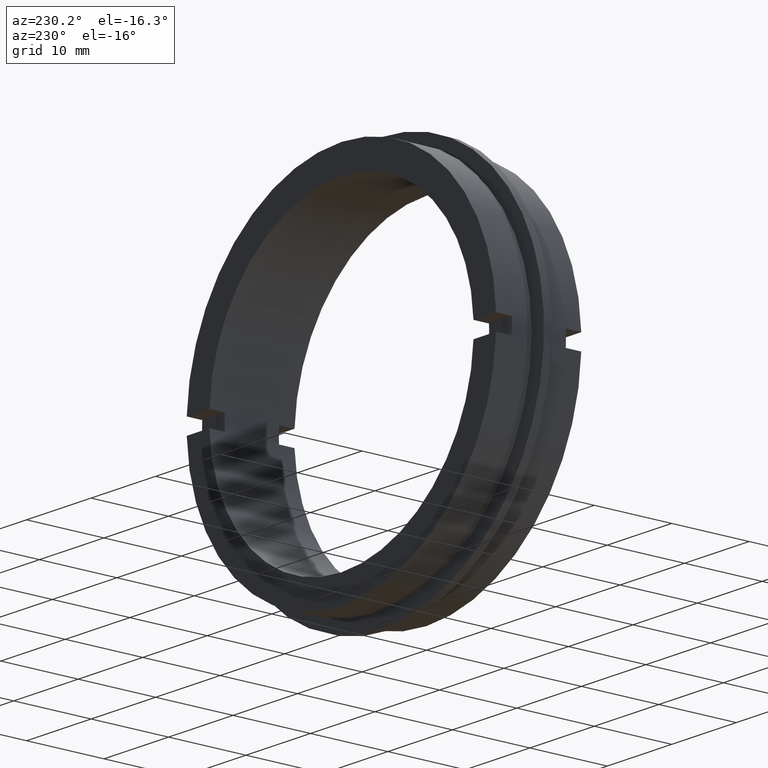
[diagram: clean part render]
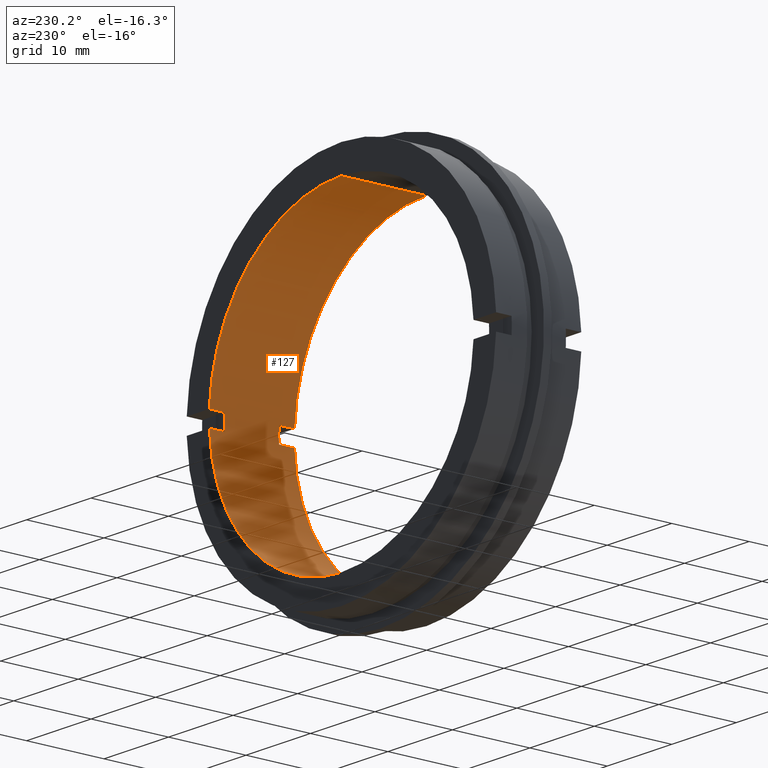
[diagram: same view with one face highlighted and labeled with its STEP entity id]
A machine part, auxiliary view. The second image highlights one B-rep face of the part: STEP entity #127.
In plain terms, the highlighted cylindrical surface (partial cylindrical patch) has radius 20.5 mm, axis along (-0, 1, -0).
Its self-contained STEP definition (entity closure, byte-faithful):
#5 = VERTEX_POINT ( 'NONE', #63 ) ;
#10 = CARTESIAN_POINT ( 'NONE',  ( 2.510525938252074100E-015, 22.67749945107591400, -20.49999999999999600 ) ) ;
#15 = LINE ( 'NONE', #1104, #938 ) ;
#16 = ORIENTED_EDGE ( 'NONE', *, *, #28, .F. ) ;
#28 = EDGE_CURVE ( 'NONE', #209, #980, #15, .T. ) ;
#58 = LINE ( 'NONE', #10, #498 ) ;
#62 = EDGE_LOOP ( 'NONE', ( #1058, #179, #573, #242, #64, #304, #601, #1044, #252, #966, #16, #1010 ) ) ;
#63 = CARTESIAN_POINT ( 'NONE',  ( 20.47559522944326500, 0.0000000000000000000, 1.000000000000000000 ) ) ;
#64 = ORIENTED_EDGE ( 'NONE', *, *, #411, .F. ) ;
#65 = DIRECTION ( 'NONE',  ( 0.0000000000000000000, 1.000000000000000000, 0.0000000000000000000 ) ) ;
#72 = DIRECTION ( 'NONE',  ( 0.0000000000000000000, 0.0000000000000000000, 1.000000000000000000 ) ) ;
#81 = CIRCLE ( 'NONE', #410, 20.49999999999999600 ) ;
#95 = LINE ( 'NONE', #911, #831 ) ;
#127 = ADVANCED_FACE ( 'NONE', ( #407 ), #692, .F. ) ;
#139 = CARTESIAN_POINT ( 'NONE',  ( 20.47559522944326500, 22.67749945107591400, -0.9999999999999943400 ) ) ;
#147 = VERTEX_POINT ( 'NONE', #853 ) ;
#159 = EDGE_CURVE ( 'NONE', #620, #341, #747, .T. ) ;
#174 = EDGE_CURVE ( 'NONE', #699, #301, #961, .T. ) ;
#179 = ORIENTED_EDGE ( 'NONE', *, *, #391, .F. ) ;
#190 = AXIS2_PLACEMENT_3D ( 'NONE', #243, #65, #686 ) ;
#205 = CARTESIAN_POINT ( 'NONE',  ( 20.47559522944326500, 22.67749945107591400, 1.000000000000003100 ) ) ;
#206 = EDGE_CURVE ( 'NONE', #209, #386, #507, .T. ) ;
#209 = VERTEX_POINT ( 'NONE', #1043 ) ;
#235 = DIRECTION ( 'NONE',  ( 0.0000000000000000000, 0.0000000000000000000, 1.000000000000000000 ) ) ;
#240 = EDGE_CURVE ( 'NONE', #1023, #5, #931, .T. ) ;
#242 = ORIENTED_EDGE ( 'NONE', *, *, #174, .F. ) ;
#243 = CARTESIAN_POINT ( 'NONE',  ( 0.0000000000000000000, 1.999999999999998200, 0.0000000000000000000 ) ) ;
#251 = AXIS2_PLACEMENT_3D ( 'NONE', #848, #665, #1089 ) ;
#252 = ORIENTED_EDGE ( 'NONE', *, *, #645, .F. ) ;
#278 = CARTESIAN_POINT ( 'NONE',  ( 0.0000000000000000000, 0.0000000000000000000, 0.0000000000000000000 ) ) ;
#291 = DIRECTION ( 'NONE',  ( -0.0000000000000000000, 1.000000000000000000, -0.0000000000000000000 ) ) ;
#301 = VERTEX_POINT ( 'NONE', #704 ) ;
#304 = ORIENTED_EDGE ( 'NONE', *, *, #240, .F. ) ;
#317 = AXIS2_PLACEMENT_3D ( 'NONE', #677, #772, #235 ) ;
#326 = VECTOR ( 'NONE', #629, 1000.000000000000000 ) ;
#329 = VECTOR ( 'NONE', #847, 1000.000000000000000 ) ;
#337 = DIRECTION ( 'NONE',  ( 0.0000000000000000000, 0.0000000000000000000, -1.000000000000000000 ) ) ;
#341 = VERTEX_POINT ( 'NONE', #618 ) ;
#356 = CARTESIAN_POINT ( 'NONE',  ( 20.47559522944326800, 9.000000000000000000, -0.9999999999999974500 ) ) ;
#367 = DIRECTION ( 'NONE',  ( 0.0000000000000000000, 0.0000000000000000000, 1.000000000000000000 ) ) ;
#386 = VERTEX_POINT ( 'NONE', #447 ) ;
#391 = EDGE_CURVE ( 'NONE', #595, #808, #81, .T. ) ;
#398 = DIRECTION ( 'NONE',  ( 0.0000000000000000000, -1.000000000000000000, 0.0000000000000000000 ) ) ;
#401 = CARTESIAN_POINT ( 'NONE',  ( 2.510525938252074100E-015, 0.0000000000000000000, -20.49999999999999600 ) ) ;
#407 = FACE_OUTER_BOUND ( 'NONE', #62, .T. ) ;
#410 = AXIS2_PLACEMENT_3D ( 'NONE', #278, #899, #367 ) ;
#411 = EDGE_CURVE ( 'NONE', #5, #699, #1031, .T. ) ;
#419 = DIRECTION ( 'NONE',  ( 0.0000000000000000000, 0.0000000000000000000, 1.000000000000000000 ) ) ;
#422 = EDGE_CURVE ( 'NONE', #808, #386, #58, .T. ) ;
#447 = CARTESIAN_POINT ( 'NONE',  ( 2.510525938252074500E-015, 11.00000000000000000, -20.50000000000000000 ) ) ;
#498 = VECTOR ( 'NONE', #988, 1000.000000000000000 ) ;
#506 = VECTOR ( 'NONE', #825, 1000.000000000000000 ) ;
#507 = CIRCLE ( 'NONE', #610, 20.50000000000000000 ) ;
#537 = LINE ( 'NONE', #205, #506 ) ;
#573 = ORIENTED_EDGE ( 'NONE', *, *, #1083, .F. ) ;
#591 = EDGE_CURVE ( 'NONE', #1023, #620, #95, .T. ) ;
#595 = VERTEX_POINT ( 'NONE', #1001 ) ;
#600 = CIRCLE ( 'NONE', #1133, 20.49999999999999600 ) ;
#601 = ORIENTED_EDGE ( 'NONE', *, *, #591, .T. ) ;
#605 = DIRECTION ( 'NONE',  ( -0.0000000000000000000, 1.000000000000000000, -0.0000000000000000000 ) ) ;
#610 = AXIS2_PLACEMENT_3D ( 'NONE', #1130, #605, #72 ) ;
#618 = CARTESIAN_POINT ( 'NONE',  ( 20.47559522944326800, 11.00000000000000000, 1.000000000000001300 ) ) ;
#620 = VERTEX_POINT ( 'NONE', #644 ) ;
#629 = DIRECTION ( 'NONE',  ( -0.0000000000000000000, 1.000000000000000000, -0.0000000000000000000 ) ) ;
#644 = CARTESIAN_POINT ( 'NONE',  ( 0.0000000000000000000, 11.00000000000000000, 20.50000000000000000 ) ) ;
#645 = EDGE_CURVE ( 'NONE', #147, #341, #537, .T. ) ;
#665 = DIRECTION ( 'NONE',  ( -0.0000000000000000000, 1.000000000000000000, -0.0000000000000000000 ) ) ;
#677 = CARTESIAN_POINT ( 'NONE',  ( 0.0000000000000000000, 22.67749945107591400, 0.0000000000000000000 ) ) ;
#686 = DIRECTION ( 'NONE',  ( 0.0000000000000000000, 0.0000000000000000000, 1.000000000000000000 ) ) ;
#692 = CYLINDRICAL_SURFACE ( 'NONE', #317, 20.49999999999999600 ) ;
#699 = VERTEX_POINT ( 'NONE', #1059 ) ;
#704 = CARTESIAN_POINT ( 'NONE',  ( 20.47559522944326800, 2.000000000000000000, -0.9999999999999995600 ) ) ;
#726 = AXIS2_PLACEMENT_3D ( 'NONE', #878, #956, #419 ) ;
#747 = CIRCLE ( 'NONE', #251, 20.50000000000000000 ) ;
#772 = DIRECTION ( 'NONE',  ( -0.0000000000000000000, 1.000000000000000000, -0.0000000000000000000 ) ) ;
#808 = VERTEX_POINT ( 'NONE', #401 ) ;
#825 = DIRECTION ( 'NONE',  ( -0.0000000000000000000, 1.000000000000000000, -0.0000000000000000000 ) ) ;
#831 = VECTOR ( 'NONE', #291, 1000.000000000000000 ) ;
#847 = DIRECTION ( 'NONE',  ( 0.0000000000000000000, -1.000000000000000000, 0.0000000000000000000 ) ) ;
#848 = CARTESIAN_POINT ( 'NONE',  ( 0.0000000000000000000, 11.00000000000000000, 0.0000000000000000000 ) ) ;
#853 = CARTESIAN_POINT ( 'NONE',  ( 20.47559522944326500, 9.000000000000000000, 1.000000000000001100 ) ) ;
#878 = CARTESIAN_POINT ( 'NONE',  ( 0.0000000000000000000, 0.0000000000000000000, 0.0000000000000000000 ) ) ;
#887 = EDGE_CURVE ( 'NONE', #980, #147, #600, .T. ) ;
#899 = DIRECTION ( 'NONE',  ( -0.0000000000000000000, 1.000000000000000000, -0.0000000000000000000 ) ) ;
#911 = CARTESIAN_POINT ( 'NONE',  ( 0.0000000000000000000, 22.67749945107591400, 20.49999999999999600 ) ) ;
#931 = CIRCLE ( 'NONE', #726, 20.49999999999999600 ) ;
#938 = VECTOR ( 'NONE', #398, 1000.000000000000000 ) ;
#956 = DIRECTION ( 'NONE',  ( -0.0000000000000000000, 1.000000000000000000, -0.0000000000000000000 ) ) ;
#957 = DIRECTION ( 'NONE',  ( -0.0000000000000000000, -1.000000000000000000, -0.0000000000000000000 ) ) ;
#961 = CIRCLE ( 'NONE', #190, 20.49999999999999600 ) ;
#966 = ORIENTED_EDGE ( 'NONE', *, *, #887, .F. ) ;
#980 = VERTEX_POINT ( 'NONE', #356 ) ;
#988 = DIRECTION ( 'NONE',  ( -0.0000000000000000000, 1.000000000000000000, -0.0000000000000000000 ) ) ;
#1001 = CARTESIAN_POINT ( 'NONE',  ( 20.47559522944326500, 0.0000000000000000000, -1.000000000000000000 ) ) ;
#1010 = ORIENTED_EDGE ( 'NONE', *, *, #206, .T. ) ;
#1023 = VERTEX_POINT ( 'NONE', #1057 ) ;
#1031 = LINE ( 'NONE', #1071, #326 ) ;
#1033 = LINE ( 'NONE', #139, #329 ) ;
#1043 = CARTESIAN_POINT ( 'NONE',  ( 20.47559522944327200, 11.00000000000000000, -0.9999999999999978900 ) ) ;
#1044 = ORIENTED_EDGE ( 'NONE', *, *, #159, .T. ) ;
#1057 = CARTESIAN_POINT ( 'NONE',  ( 0.0000000000000000000, 0.0000000000000000000, 20.49999999999999600 ) ) ;
#1058 = ORIENTED_EDGE ( 'NONE', *, *, #422, .F. ) ;
#1059 = CARTESIAN_POINT ( 'NONE',  ( 20.47559522944326500, 1.999999999999998200, 1.000000000000000200 ) ) ;
#1071 = CARTESIAN_POINT ( 'NONE',  ( 20.47559522944326500, 22.67749945107591400, 1.000000000000003800 ) ) ;
#1083 = EDGE_CURVE ( 'NONE', #301, #595, #1033, .T. ) ;
#1089 = DIRECTION ( 'NONE',  ( 0.0000000000000000000, 0.0000000000000000000, 1.000000000000000000 ) ) ;
#1104 = CARTESIAN_POINT ( 'NONE',  ( 20.47559522944326500, 22.67749945107591400, -1.000000000000000000 ) ) ;
#1129 = CARTESIAN_POINT ( 'NONE',  ( 0.0000000000000000000, 9.000000000000000000, 0.0000000000000000000 ) ) ;
#1130 = CARTESIAN_POINT ( 'NONE',  ( 0.0000000000000000000, 11.00000000000000000, 0.0000000000000000000 ) ) ;
#1133 = AXIS2_PLACEMENT_3D ( 'NONE', #1129, #957, #337 ) ;